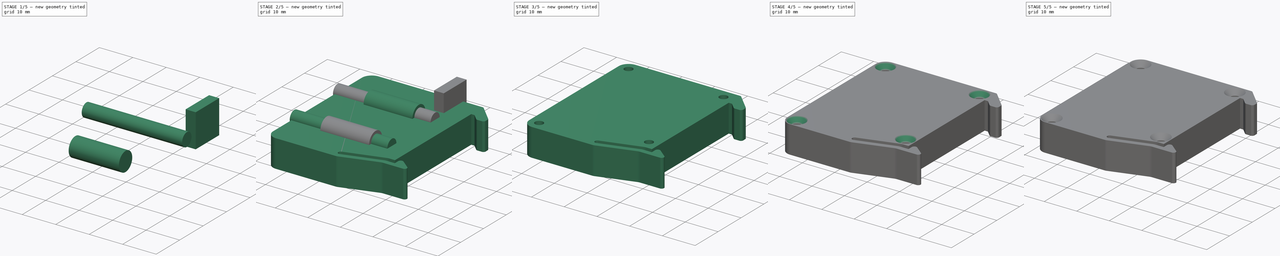
[diagram: build sequence overview — one tinted view per stage of 5, left to right]
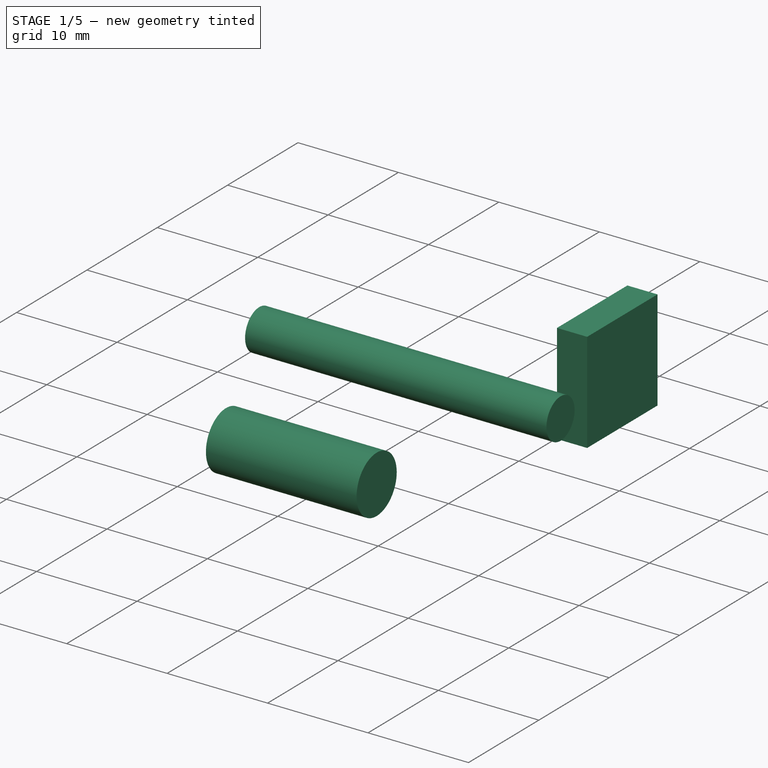
[diagram: stage 1 of 5 — iso view after this stage's code; geometry added in this stage tinted green]
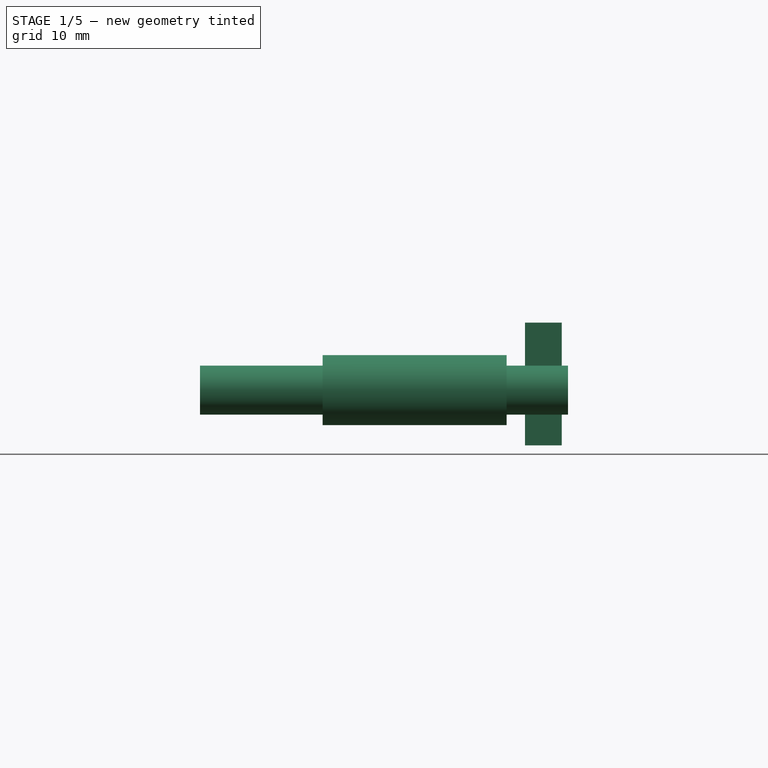
[diagram: stage 1 of 5 — front view after this stage's code; geometry added in this stage tinted green]
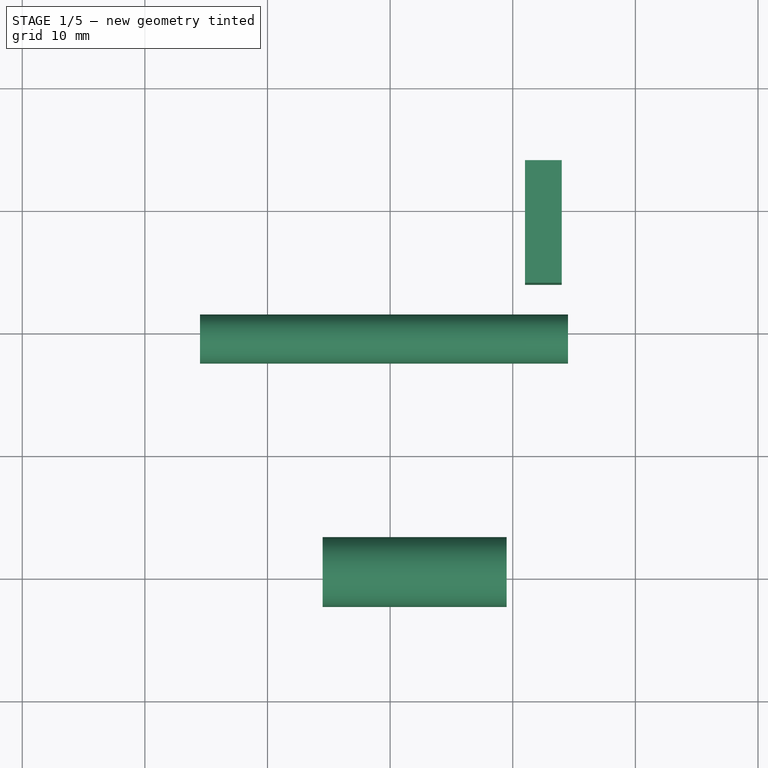
[diagram: stage 1 of 5 — top view after this stage's code; geometry added in this stage tinted green]
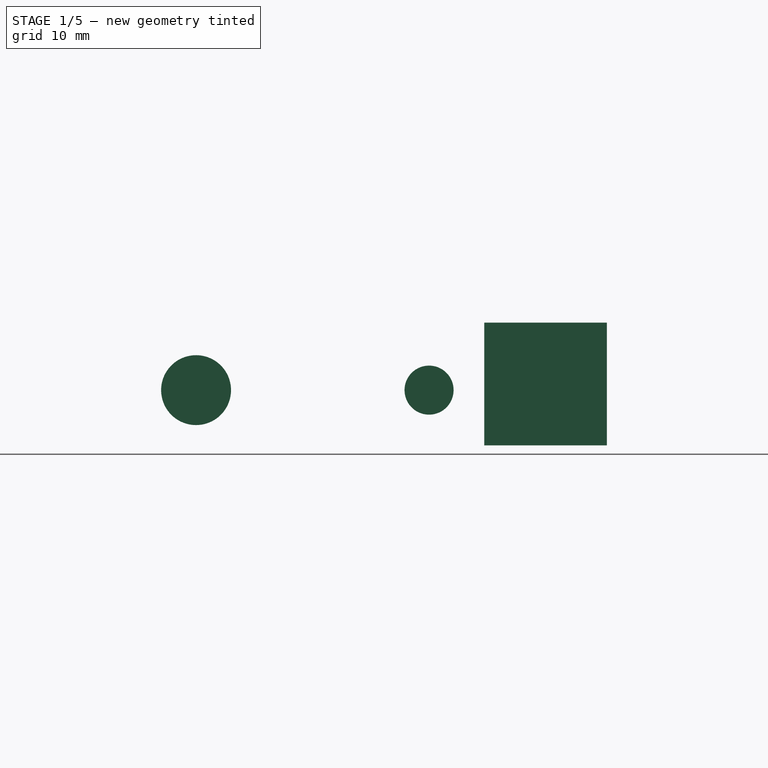
[diagram: stage 1 of 5 — right view after this stage's code; geometry added in this stage tinted green]
FCSTD DOCUMENT
Label: DIN_mains_socket_v1
License: CC-BY 3.0
LicenseURL: http://creativecommons.org/licenses/by/3.0/
objects: Part::Cylinder×5, Sketcher::SketchObject×4, Part::Mirroring×4, Part::MultiFuse×2, Part::Cut×2, PartDesign::Pocket×2, PartDesign::Pad×1, Part::Box×1, Part::Chamfer×1
note: 25 computed .brp shape members not serialized (recipe doc carries the construction recipe); baked Part::Feature solids carry a one-line shape summary decoded from their .brp

FEATURE [Part::Cylinder] Cylinder001
  Angle = 360
  Height = 30
  Placement = pos=(-35.5,9.5,8.5) rot=(0,1,0;1.5708rad)
  Radius = 2
FEATURE [Part::Cylinder] Cylinder002
  Angle = 360
  Height = 15
  Placement = pos=(-25.5,9.5,8.5) rot=(0,1,0;1.5708rad)
  Radius = 2.85
FEATURE [Part::Mirroring] Part__Mirroring002  label="Cylinder (Mirror #1)001"
  Base = (0,0,0)
  Normal = (0,1,0)
  Source = -> Cylinder002
FEATURE [Part::Box] Box
  Height = 10
  Length = 3
  Placement = pos=(-9,14,4) rot=(0,0,1;0rad)
  Width = 10
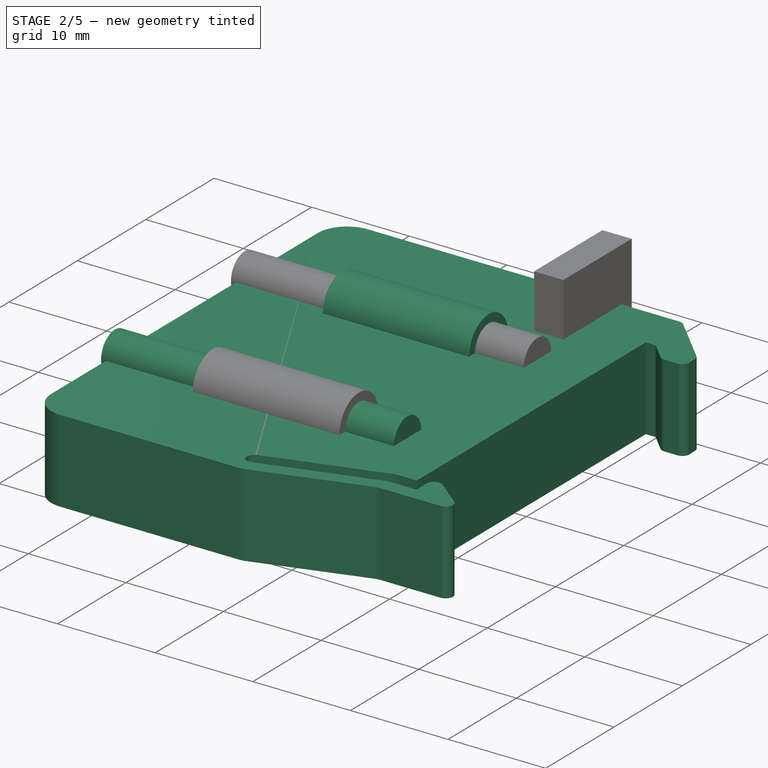
[diagram: stage 2 of 5 — iso view after this stage's code; geometry added in this stage tinted green]
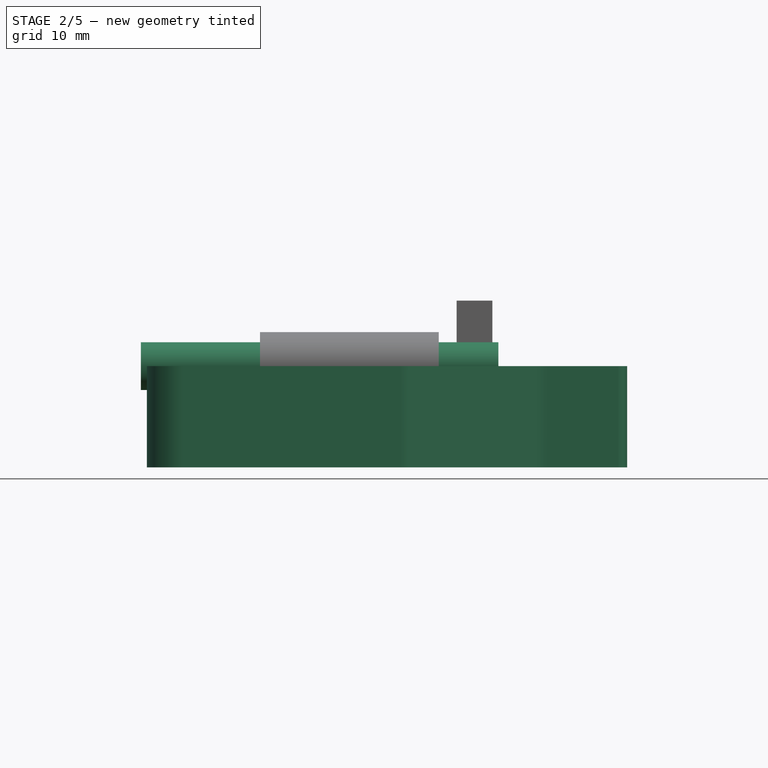
[diagram: stage 2 of 5 — front view after this stage's code; geometry added in this stage tinted green]
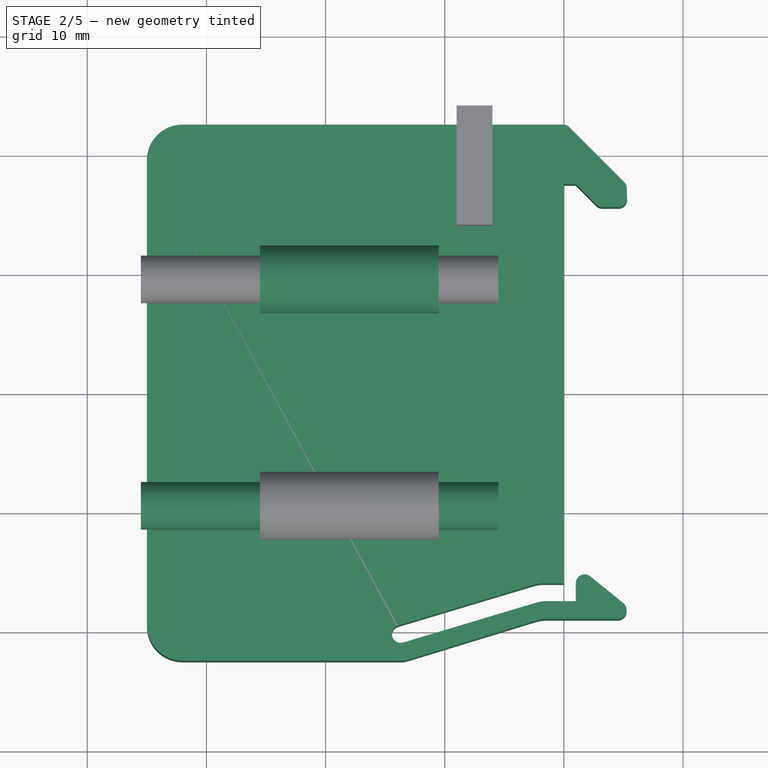
[diagram: stage 2 of 5 — top view after this stage's code; geometry added in this stage tinted green]
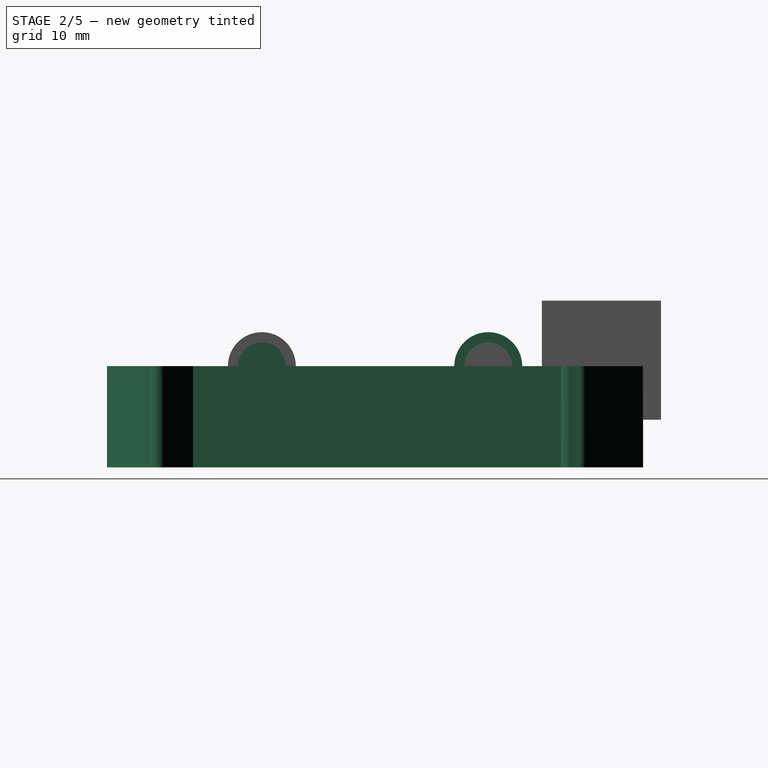
[diagram: stage 2 of 5 — right view after this stage's code; geometry added in this stage tinted green]
FEATURE [Sketcher::SketchObject] Sketch
  Placement = pos=(-3,0,0) rot=(0,0,1;0rad)
  sketch-geometry (30):
    g0: LineSegment StartX=2.94482 StartY=22.5 StartZ=0 EndX=-29 EndY=22.5 EndZ=0
    g1: LineSegment StartX=1.5304 StartY=-19 StartZ=0 EndX=7.51862 EndY=-19 EndZ=0
    g2: ArcOfCircle CenterX=7.51862 CenterY=-18.25 CenterZ=0 NormalX=0 NormalY=0 NormalZ=1 Radius=0.75 StartAngle=4.71239 EndAngle=7.17156
    g3: LineSegment StartX=7.99163 StartY=-17.668 StartZ=0 EndX=5.22301 EndY=-15.418 EndZ=0
    g4: ArcOfCircle CenterX=4.75 CenterY=-16 CenterZ=0 NormalX=0 NormalY=0 NormalZ=1 Radius=0.75 StartAngle=0.888372 EndAngle=3.14159
    g5: LineSegment StartX=4 StartY=-17.5 StartZ=0 EndX=1.53785 EndY=-17.5 EndZ=0
    g6: LineSegment StartX=1.31778 StartY=-16 StartZ=0 EndX=3 EndY=-16 EndZ=0
    g7: LineSegment StartX=3 StartY=-16 StartZ=0 EndX=3 EndY=17.5 EndZ=0
    g8: LineSegment StartX=3 StartY=17.5 StartZ=0 EndX=4 EndY=17.5 EndZ=0
    g9: LineSegment StartX=4 StartY=17.5 StartZ=0 EndX=5.68519 EndY=15.8148 EndZ=0
    g10: ArcOfCircle CenterX=6.23904 CenterY=16.3205 CenterZ=0 NormalX=0 NormalY=0 NormalZ=1 Radius=0.75 StartAngle=3.8816 EndAngle=4.71239
    g11: LineSegment StartX=6.23904 StartY=15.5705 StartZ=0 EndX=7.71675 EndY=15.5705 EndZ=0
    g12: ArcOfCircle CenterX=7.55675 CenterY=16.3033 CenterZ=0 NormalX=0 NormalY=0 NormalZ=1 Radius=0.75 StartAngle=4.92738 EndAngle=6.51668
    g13: LineSegment StartX=8.28639 StartY=16.4768 StartZ=0 EndX=8.28639 EndY=17.1456 EndZ=0
    g14: LineSegment StartX=4 StartY=-16 StartZ=0 EndX=4 EndY=-17.5 EndZ=0
    g15: LineSegment StartX=3.45324 StartY=22.2894 StartZ=0 EndX=8.06672 EndY=17.6759 EndZ=0
    g16: ArcOfCircle CenterX=7.53639 CenterY=17.1456 CenterZ=0 NormalX=0 NormalY=0 NormalZ=1 Radius=0.75 StartAngle=0 EndAngle=0.785398
    g17: ArcOfCircle CenterX=2.94482 CenterY=21.781 CenterZ=0 NormalX=0 NormalY=0 NormalZ=1 Radius=0.719009 StartAngle=0.785398 EndAngle=1.5708
    g18: LineSegment StartX=0.651894 StartY=-19.1315 StartZ=0 EndX=-10.0248 EndY=-22.4014 EndZ=0
    g19: LineSegment StartX=0.456064 StartY=-16.1264 StartZ=0 EndX=-10.8991 EndY=-19.5316 EndZ=0
    g20: LineSegment StartX=-10.4682 StartY=-20.9684 StartZ=0 EndX=0.67613 EndY=-17.6264 EndZ=0
    g21: ArcOfCircle CenterX=-10.6837 CenterY=-20.25 CenterZ=0 NormalX=0 NormalY=0 NormalZ=1 Radius=0.75 StartAngle=1.86214 EndAngle=5.00373
    g22: ArcOfCircle CenterX=-10.6837 CenterY=-20.25 CenterZ=0 NormalX=0 NormalY=0 NormalZ=1 Radius=2.25004 StartAngle=4.71239 EndAngle=5.00958
    g23: LineSegment StartX=-29 StartY=-22.5 StartZ=0 EndX=-10.6837 EndY=-22.5 EndZ=0
    g24: ArcOfCircle CenterX=1.31778 CenterY=-19 CenterZ=0 NormalX=0 NormalY=0 NormalZ=1 Radius=3 StartAngle=1.5708 EndAngle=1.86214
    g25: ArcOfCircle CenterX=1.53785 CenterY=-20.5 CenterZ=0 NormalX=0 NormalY=0 NormalZ=1 Radius=3 StartAngle=1.5708 EndAngle=1.86214
    g26: ArcOfCircle CenterX=1.5304 CenterY=-22 CenterZ=0 NormalX=0 NormalY=0 NormalZ=1 Radius=3 StartAngle=1.5708 EndAngle=1.86799
    g27: LineSegment StartX=-32 StartY=-19.5 StartZ=0 EndX=-32 EndY=19.5 EndZ=0
    g28: ArcOfCircle CenterX=-29 CenterY=19.5 CenterZ=0 NormalX=0 NormalY=0 NormalZ=1 Radius=3 StartAngle=1.5708 EndAngle=3.1416
    g29: ArcOfCircle CenterX=-29 CenterY=-19.5 CenterZ=0 NormalX=0 NormalY=0 NormalZ=1 Radius=3 StartAngle=3.1416 EndAngle=4.71238
  constraints (80):
    c: Coincident(g6,g7)
    c: Vertical(g7)
    c: Parallel(g5,g6)
    c: Vertical(g14)
    c: Coincident(g4,g14)
    c: Coincident(g4,g3)
    c: Tangent(g4,g14)
    c: Tangent(g4,g3)
    c: Coincident(g14,g5)
    c: Coincident(g8,g7)
    c: Coincident(g3,g2)
    c: DistanceY(g6,g5) = -1.5
    c: Distance(g5,g1) = 1.5
    c: Coincident(g1,g2)
    c: Distance(g8) = 1
    c: Horizontal(g8)
    c: Coincident(g9,g8)
    c: Tangent(g10,g11)
    c: Horizontal(g0)
    c: Radius(g2) = 0.75
    c: DistanceX(g6,g5) = 1
    c: Distance(g14) = 1.5
    c: Radius(g4) = 0.75
    c: Vertical(g13)
    c: Coincident(g12,g13)
    c: Coincident(g11,g12)
    c: Horizontal(g11)
    c: Tangent(g2,g1)
    c: Coincident(g10,g9)
    c: Coincident(g10,g11)
    c: Tangent(g3,g2)
    c: Angle(g0,g15) = 2.35619
    c: Distance(g8,g15) = 3
    c: Parallel(g9,g15)
    c: Tangent(g13,g16)
    c: Tangent(g15,g16)
    c: Tangent(g0,g17)
    c: Tangent(g15,g17)
    c: Radius(g12) = 0.75
    c: Equal(g16,g12)
    c: Equal(g12,g10)
    c: DistanceY(g5,g8) = 35
    c: Distance(g20,g19) = 1.5
    c: Coincident(g21,g20)
    c: Tangent(g21,g20)
    c: Coincident(g21,g19)
    c: Tangent(g21,g19)
    c: Tangent(g23,g22)
    c: Tangent(g18,g22)
    c: Coincident(g22,g21)
    c: Parallel(g19,g20)
    c: Parallel(g5,g1)
    c: Horizontal(g1)
    c: DistanceY(g5) = -17.5
    c: Distance(g18,g20) = 1.5
    c: Tangent(g6,g24)
    c: Tangent(g19,g24)
    c: Tangent(g5,g25)
    c: Tangent(g20,g25)
    c: Tangent(g1,g26)
    c: Tangent(g18,g26)
    c: Radius(g24) = 3
    c: Radius(g25) = 3
    c: Radius(g26) = 3
    c: Horizontal(g23)
    c: DistanceY(g23,g0) = 45
    c: Vertical(g27)
    c: DistanceX(g27) = -32
    c: DistanceX(g6) = 3
    c: DistanceY(g0) = 22.5
    c: DistanceX(g28) = -29
    c: DistanceY(g28) = 19.5
    c: Coincident(g28,g27)
    c: Coincident(g28,g0)
    c: DistanceX(g29) = -29
    c: DistanceY(g29) = -19.5
    c: Coincident(g29,g23)
    c: Coincident(g29,g27)
    c: Equal(g29,g28)
    c: Radius(g28) = 3
FEATURE [Sketcher::SketchObject] Sketch001
  Placement = pos=(0,17.5,0) rot=(0,0,1;0rad)
  sketch-geometry (20):
    g0: LineSegment StartX=0 StartY=0 StartZ=0 EndX=0.981065 EndY=0 EndZ=0
    g1: LineSegment StartX=0.981065 StartY=0 StartZ=0 EndX=0.981065 EndY=-3.53545 EndZ=0
    g2: ArcOfCircle CenterX=1.48107 CenterY=-3.53545 CenterZ=0 NormalX=0 NormalY=0 NormalZ=1 Radius=0.5 StartAngle=3.14159 EndAngle=4.71239
    g3: LineSegment StartX=1.48107 StartY=-4.03545 StartZ=0 EndX=6.48107 EndY=-4.03545 EndZ=0
    g4: ArcOfCircle CenterX=6.48107 CenterY=-5.03545 CenterZ=0 NormalX=0 NormalY=0 NormalZ=1 Radius=1 StartAngle=0 EndAngle=1.5708
    g5: LineSegment StartX=7.48107 StartY=-5.03545 StartZ=0 EndX=7.48107 EndY=-30.0354 EndZ=0
    g6: ArcOfCircle CenterX=6.48107 CenterY=-30.0354 CenterZ=0 NormalX=0 NormalY=0 NormalZ=1 Radius=1 StartAngle=4.71239 EndAngle=6.28319
    g7: LineSegment StartX=6.48107 StartY=-31.0354 StartZ=0 EndX=1.48107 EndY=-31.0354 EndZ=0
    g8: ArcOfCircle CenterX=1.48107 CenterY=-31.5354 CenterZ=0 NormalX=0 NormalY=0 NormalZ=1 Radius=0.5 StartAngle=1.5708 EndAngle=3.14159
    g9: LineSegment StartX=0.981065 StartY=-31.5354 StartZ=0 EndX=0.981065 EndY=-35 EndZ=0
    g10: LineSegment StartX=0.981065 StartY=-35 StartZ=0 EndX=-0.018935 EndY=-35 EndZ=0
    g11: LineSegment StartX=-0.018935 StartY=-35 StartZ=0 EndX=-0.018935 EndY=-31.0354 EndZ=0
    g12: ArcOfCircle CenterX=0.981065 CenterY=-31.0354 CenterZ=0 NormalX=0 NormalY=0 NormalZ=1 Radius=1 StartAngle=1.5708 EndAngle=3.14159
    g13: LineSegment StartX=0.981065 StartY=-30.0354 StartZ=0 EndX=5.98107 EndY=-30.0354 EndZ=0
    g14: ArcOfCircle CenterX=5.98107 CenterY=-29.5354 CenterZ=0 NormalX=0 NormalY=0 NormalZ=1 Radius=0.5 StartAngle=4.71239 EndAngle=6.28319
    g15: LineSegment StartX=6.48107 StartY=-29.5354 StartZ=0 EndX=6.48107 EndY=-5.53545 EndZ=0
    g16: ArcOfCircle CenterX=5.98107 CenterY=-5.53545 CenterZ=0 NormalX=0 NormalY=0 NormalZ=1 Radius=0.5 StartAngle=0 EndAngle=1.5708
    g17: LineSegment StartX=5.98107 StartY=-5.03545 StartZ=0 EndX=0.981065 EndY=-5.03545 EndZ=0
    g18: ArcOfCircle CenterX=0.981065 CenterY=-4.03545 CenterZ=0 NormalX=0 NormalY=0 NormalZ=1 Radius=1 StartAngle=3.14159 EndAngle=4.71239
    g19: LineSegment StartX=-0.018935 StartY=-4.03545 StartZ=0 EndX=0 EndY=0 EndZ=0
  constraints (9):
    c: DistanceY(g-1,g10) = -35
    c: DistanceX(g0) = 0
    c: DistanceY(g0) = 0
    c: Horizontal(g0)
    c: Coincident(g19,g-1)
    c: Coincident(g1,g0)
    c: Horizontal(g10)
    c: Coincident(g9,g10)
    c: Coincident(g11,g10)
FEATURE [PartDesign::Pad] Pad  label="DIN bracket solid"
  Length = 8.5
  Length2 = 100
  Placement = pos=(-3,0,0) rot=(0,0,1;0rad)
  Sketch = -> Sketch
  Type = 0
FEATURE [Part::Mirroring] Part__Mirroring001  label="Cylinder001 (Mirror #2)"
  Base = (0,0,0)
  Normal = (0,1,0)
  Source = -> Cylinder001
FEATURE [Part::MultiFuse] Fusion  label="cuts"
  Shapes = -> [Part__Mirroring002,Part__Mirroring001,Cylinder002,Cylinder001,Box]
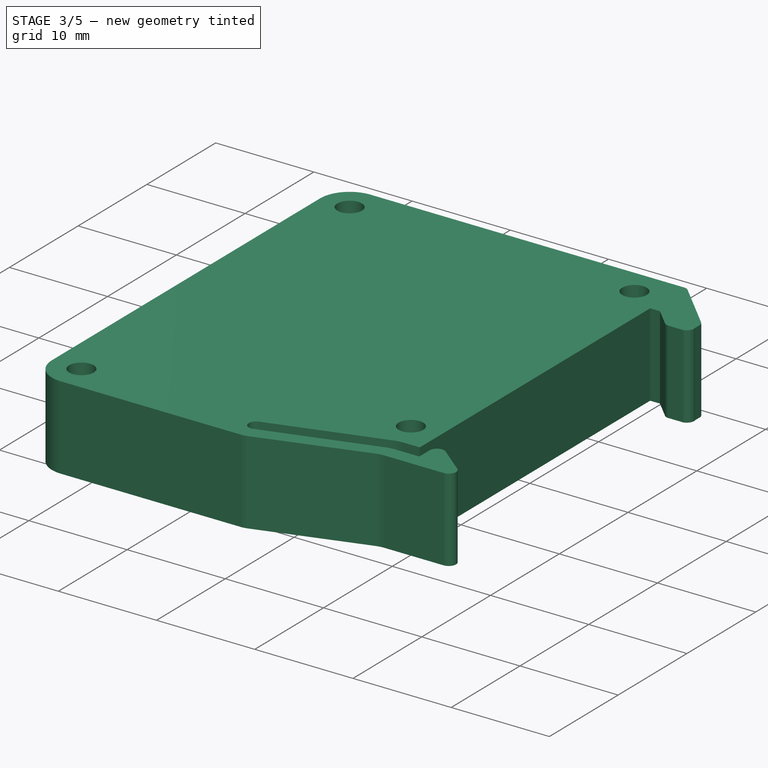
[diagram: stage 3 of 5 — iso view after this stage's code; geometry added in this stage tinted green]
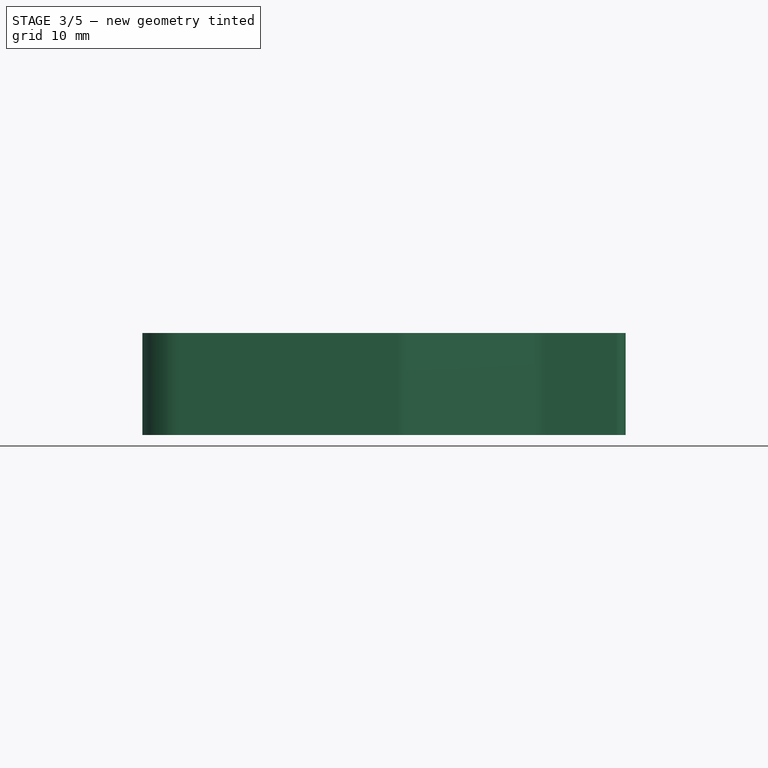
[diagram: stage 3 of 5 — front view after this stage's code; geometry added in this stage tinted green]
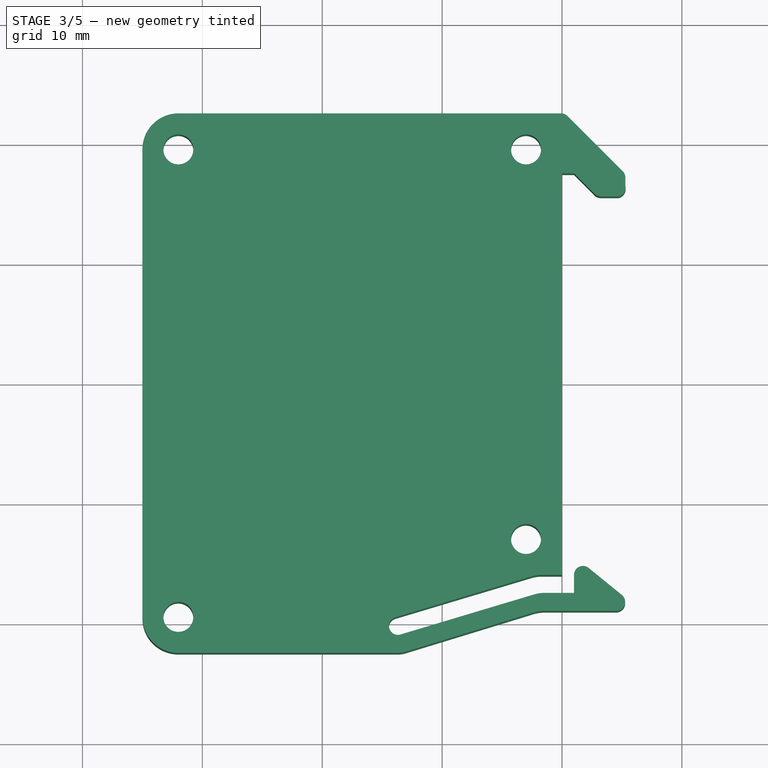
[diagram: stage 3 of 5 — top view after this stage's code; geometry added in this stage tinted green]
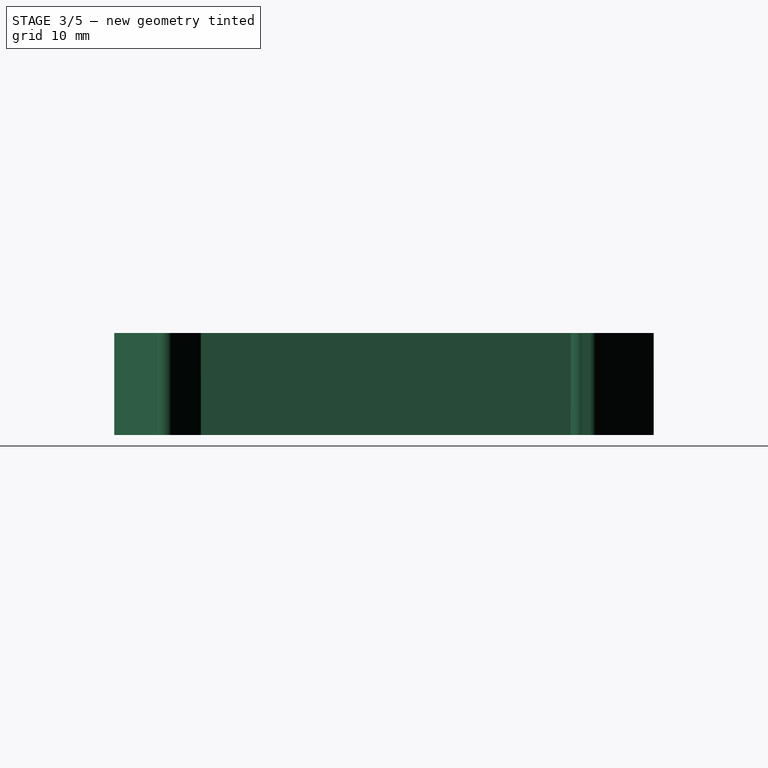
[diagram: stage 3 of 5 — right view after this stage's code; geometry added in this stage tinted green]
FEATURE [Sketcher::SketchObject] Sketch002001  label="Sketch002"
  Placement = pos=(-3,0,8.5) rot=(0,0,1;0rad)
  Support = -> Pad [Face32]
  sketch-geometry (25):
    g0: LineSegment StartX=1.5 StartY=16.9019 StartZ=0 EndX=1.5 EndY=-10.4049 EndZ=0
    g1: LineSegment StartX=-15.5 StartY=-19.5 StartZ=0 EndX=-9 EndY=-17.5346 EndZ=0
    g2: ArcOfCircle CenterX=0 CenterY=19.5 CenterZ=0 NormalX=0 NormalY=0 NormalZ=1 Radius=3 StartAngle=2.61799 EndAngle=5.23599
    g3: LineSegment StartX=-2.59808 StartY=21 StartZ=0 EndX=-6 EndY=21 EndZ=0
    g4: LineSegment StartX=-30.5 StartY=16.9019 StartZ=0 EndX=-30.5 EndY=-16.9019 EndZ=0
    g5: LineSegment StartX=-26 StartY=-19.5 StartZ=0 EndX=-24 EndY=-19.5 EndZ=0
    g6: ArcOfCircle CenterX=-29 CenterY=19.5 CenterZ=0 NormalX=0 NormalY=0 NormalZ=1 Radius=3 StartAngle=4.18879 EndAngle=6.80678
    g7: ArcOfCircle CenterX=-29 CenterY=-19.5 CenterZ=0 NormalX=0 NormalY=0 NormalZ=1 Radius=3 StartAngle=0 EndAngle=2.0944
    g8: ArcOfCircle CenterX=-0.005189 CenterY=-13 CenterZ=0 NormalX=0 NormalY=0 NormalZ=1 Radius=3 StartAngle=1.0452 EndAngle=4.05276
    g9: LineSegment StartX=-24 StartY=3 StartZ=0 EndX=-21 EndY=3 EndZ=0
    g10: LineSegment StartX=-21 StartY=3 StartZ=0 EndX=-21 EndY=21 EndZ=0
    g11: LineSegment StartX=-24 StartY=21 StartZ=0 EndX=-24 EndY=3 EndZ=0
    g12: LineSegment StartX=-24 StartY=-3 StartZ=0 EndX=-21 EndY=-3 EndZ=0
    g13: LineSegment StartX=-21 StartY=-3 StartZ=0 EndX=-21 EndY=-19.5 EndZ=0
    g14: LineSegment StartX=-24 StartY=-19.5 StartZ=0 EndX=-24 EndY=-3 EndZ=0
    g15: LineSegment StartX=-6 StartY=3 StartZ=0 EndX=-9 EndY=3 EndZ=0
    g16: LineSegment StartX=-9 StartY=3 StartZ=0 EndX=-9 EndY=21 EndZ=0
    g17: LineSegment StartX=-6 StartY=21 StartZ=0 EndX=-6 EndY=3 EndZ=0
    g18: LineSegment StartX=-9 StartY=-3 StartZ=0 EndX=-6 EndY=-3 EndZ=0
    g19: LineSegment StartX=-6 StartY=-3 StartZ=0 EndX=-6 EndY=-16.6274 EndZ=0
    g20: LineSegment StartX=-9 StartY=-17.5346 StartZ=0 EndX=-9 EndY=-3 EndZ=0
    g21: LineSegment StartX=-24 StartY=21 StartZ=0 EndX=-26.4019 EndY=21 EndZ=0
    g22: LineSegment StartX=-9 StartY=21 StartZ=0 EndX=-21 EndY=21 EndZ=0
    g23: LineSegment StartX=-21 StartY=-19.5 StartZ=0 EndX=-15.5 EndY=-19.5 EndZ=0
    g24: LineSegment StartX=-6 StartY=-16.6274 StartZ=0 EndX=-1.84366 EndY=-15.3707 EndZ=0
  constraints (75):
    c: DistanceX(g1) = -15.5
    c: DistanceX(g0) = 1.5
    c: Coincident(g2,g0)
    c: Horizontal(g3)
    c: Horizontal(g5)
    c: Coincident(g3,g2)
    c: Vertical(g4)
    c: Coincident(g23,g1)
    c: DistanceX(g7) = -29
    c: DistanceY(g7) = -19.5
    c: DistanceX(g6) = -29
    c: DistanceY(g6) = 19.5
    c: DistanceX(g2) = 0
    c: DistanceY(g2) = 19.5
    c: Vertical(g0)
    c: Coincident(g5,g7)
    c: Coincident(g4,g7)
    c: Coincident(g21,g6)
    c: Coincident(g4,g6)
    c: Radius(g8) = 3
    c: DistanceY(g1) = -19.5
    c: Coincident(g24,g8)
    c: Coincident(g0,g8)
    c: Coincident(g9,g10)
    c: Coincident(g11,g9)
    c: Horizontal(g9)
    c: Vertical(g10)
    c: Vertical(g11)
    c: Coincident(g12,g13)
    c: Coincident(g14,g12)
    c: Horizontal(g12)
    c: Vertical(g13)
    c: Vertical(g14)
    c: Coincident(g15,g16)
    c: Coincident(g17,g15)
    c: Horizontal(g15)
    c: Vertical(g16)
    c: Vertical(g17)
    c: Coincident(g18,g19)
    c: Coincident(g20,g18)
    c: Horizontal(g18)
    c: Vertical(g19)
    c: Vertical(g20)
    c: Distance(g9) = 3
    c: Equal(g9,g12)
    c: Equal(g12,g15)
    c: Equal(g15,g18)
    c: Coincident(g22,g10)
    c: Coincident(g21,g11)
    c: Tangent(g3,g21)
    c: Coincident(g3,g17)
    c: Coincident(g22,g16)
    c: Tangent(g3,g22)
    c: Coincident(g5,g14)
    c: Coincident(g23,g13)
    c: Tangent(g5,g23)
    c: Coincident(g1,g20)
    c: Coincident(g24,g19)
    c: Tangent(g1,g24)
    c: DistanceY(g9) = 3
    c: DistanceX(g15) = -9
    c: DistanceY(g15) = 3
    c: DistanceX(g18) = -9
    c: DistanceY(g18) = -3
    c: DistanceX(g12) = -24
    c: DistanceY(g12) = -3
    c: DistanceX(g9) = -24
    c: DistanceX(g4) = -30.5
    c: Angle(g1,g23) = 2.84796
    c: Equal(g8,g7)
    c: Equal(g7,g6)
    c: Equal(g6,g2)
    c: DistanceX(g8) = -0.005189
    c: DistanceY(g8) = -13
    c: DistanceY(g10) = 21
FEATURE [PartDesign::Pocket] Pocket
  Length = 7.5
  Placement = pos=(-3,0,0) rot=(0,0,1;0rad)
  Sketch = -> Sketch002001
  Type = 0
FEATURE [Sketcher::SketchObject] Sketch003
  Placement = pos=(-3,0,0) rot=(1,0,0;3.14159rad)
  Support = -> Pocket [Face4]
  sketch-geometry (4):
    g0: Circle CenterX=-29 CenterY=19.5 CenterZ=0 NormalX=0 NormalY=0 NormalZ=1 Radius=1.25
    g1: Circle CenterX=-29 CenterY=-19.5 CenterZ=0 NormalX=0 NormalY=0 NormalZ=1 Radius=1.25
    g2: Circle CenterX=0 CenterY=13 CenterZ=0 NormalX=0 NormalY=0 NormalZ=1 Radius=1.25
    g3: Circle CenterX=0 CenterY=-19.5 CenterZ=0 NormalX=0 NormalY=0 NormalZ=1 Radius=1.25
  constraints (12):
    c: Radius(g0) = 1.25
    c: DistanceX(g0) = -29
    c: DistanceY(g0) = 19.5
    c: Equal(g1,g0)
    c: DistanceX(g1) = -29
    c: DistanceY(g1) = -19.5
    c: Equal(g2,g0)
    c: DistanceX(g2) = 0
    c: DistanceY(g2) = 13
    c: Equal(g3,g0)
    c: DistanceX(g3) = 0
    c: DistanceY(g3) = -19.5
FEATURE [PartDesign::Pocket] Pocket002  label="half socket hollow"
  Length = 5
  Placement = pos=(-3,0,0) rot=(0,0,1;0rad)
  Sketch = -> Sketch003
  Type = 1
FEATURE [Part::Cut] Cut  label="half socket"
  Base = -> Pocket002
  Tool = -> Fusion
FEATURE [Part::Mirroring] Part__Mirroring  label="half socket (Mirror #4)"
  Base = (0,0,8.5)
  Normal = (0,0,1)
  Source = -> Cut
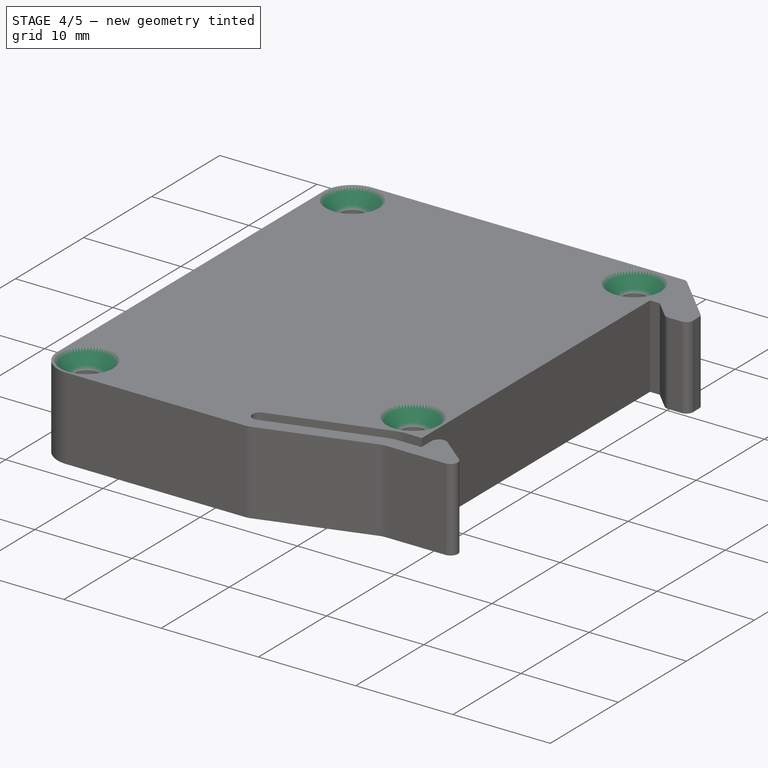
[diagram: stage 4 of 5 — iso view after this stage's code; geometry added in this stage tinted green]
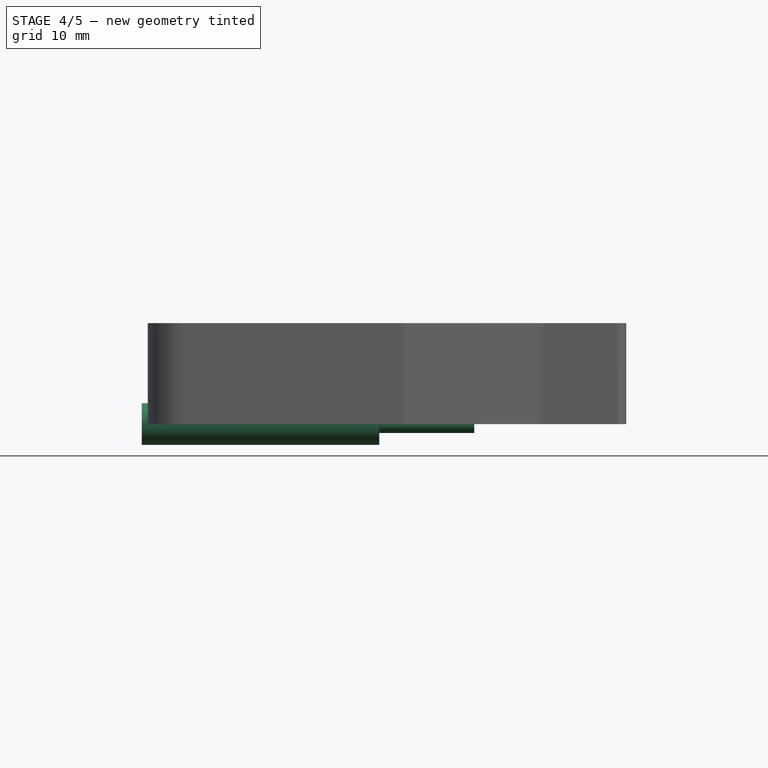
[diagram: stage 4 of 5 — front view after this stage's code; geometry added in this stage tinted green]
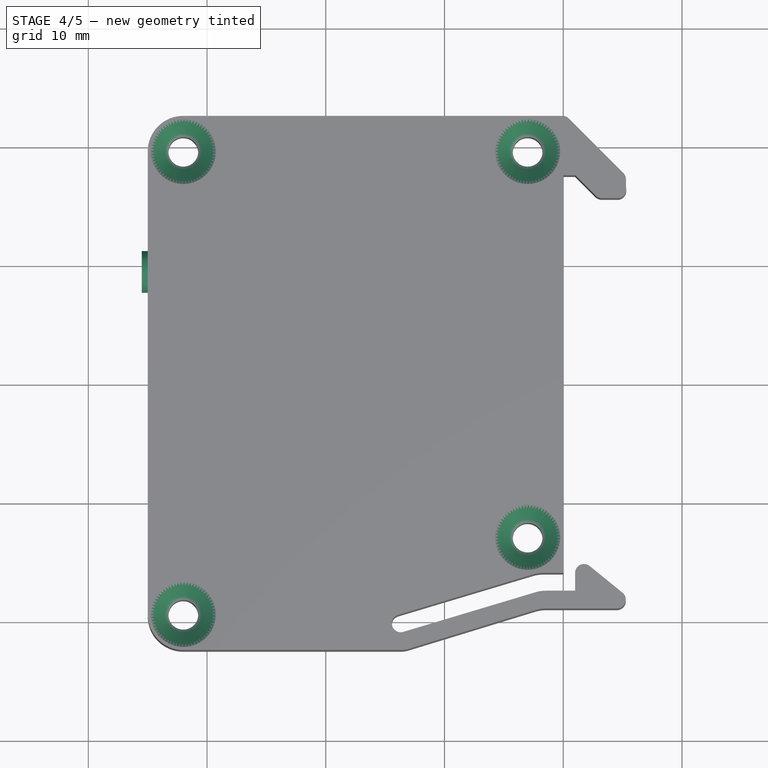
[diagram: stage 4 of 5 — top view after this stage's code; geometry added in this stage tinted green]
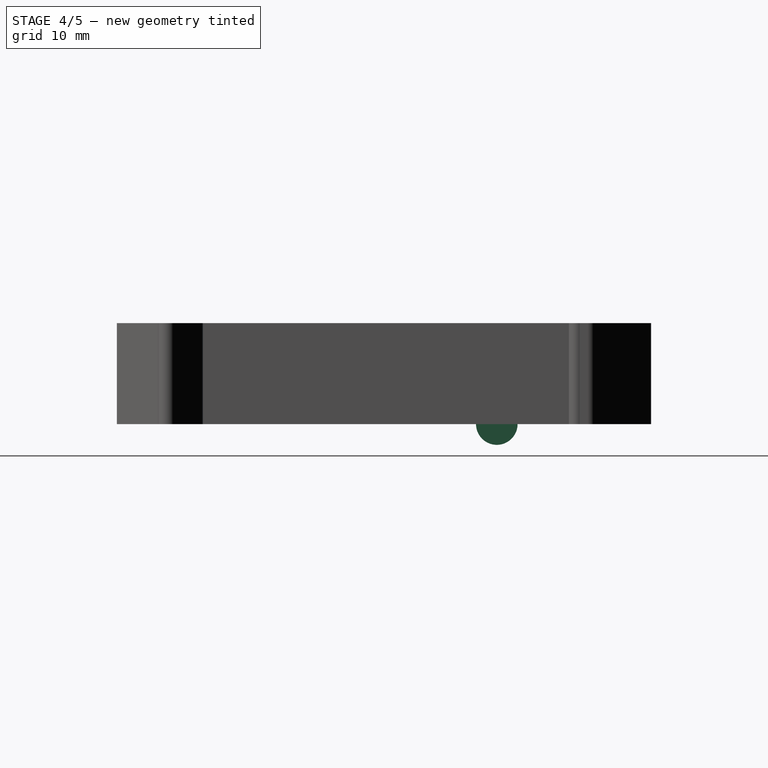
[diagram: stage 4 of 5 — right view after this stage's code; geometry added in this stage tinted green]
FEATURE [Part::Cylinder] Cylinder001001
  Angle = 360
  Height = 20
  Placement = pos=(-35.5,9.5,8.5) rot=(0,1,0;1.5708rad)
  Radius = 1.75
FEATURE [Part::Cylinder] Cylinder001001001
  Angle = 360
  Height = 28
  Placement = pos=(-35.5,9.5,8.5) rot=(0,1,0;1.5708rad)
  Radius = 0.75
FEATURE [Part::Chamfer] Chamfer
  Base = -> Part__Mirroring
  Edges = 4 edges r=1.49: [Edge15,Edge16,Edge17,Edge18]
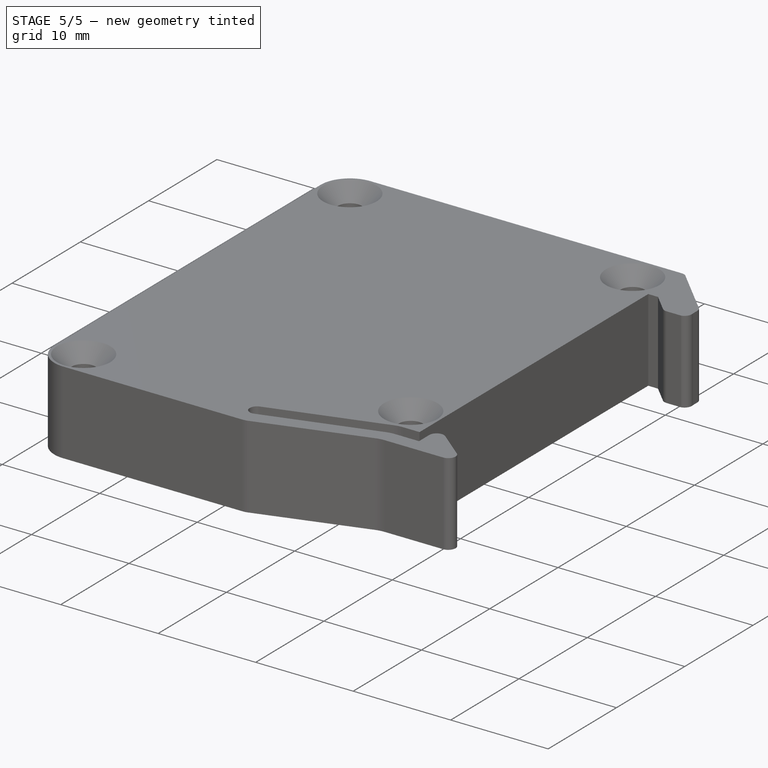
[diagram: stage 5 of 5 — iso view after this stage's code; geometry added in this stage tinted green]
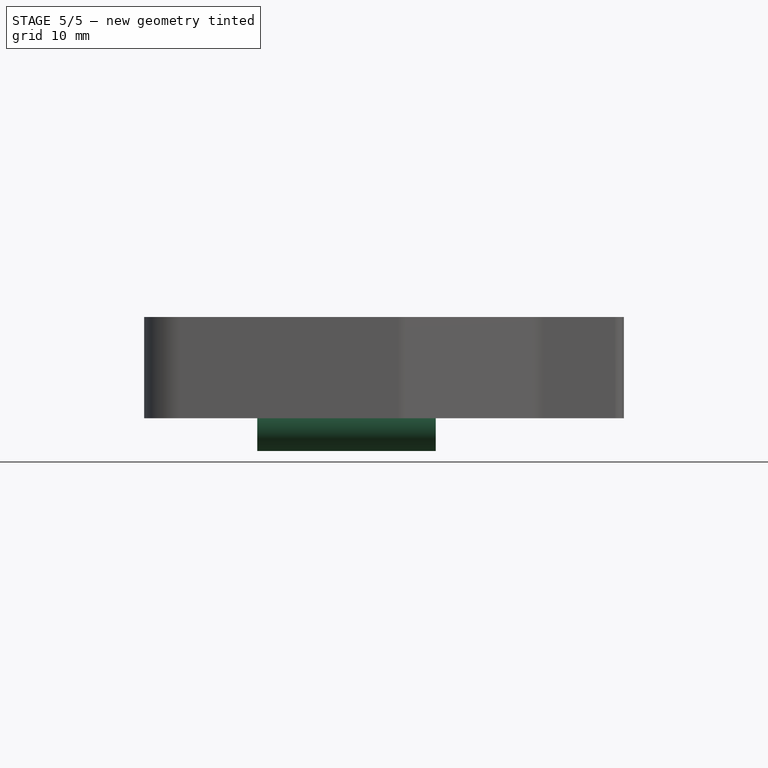
[diagram: stage 5 of 5 — front view after this stage's code; geometry added in this stage tinted green]
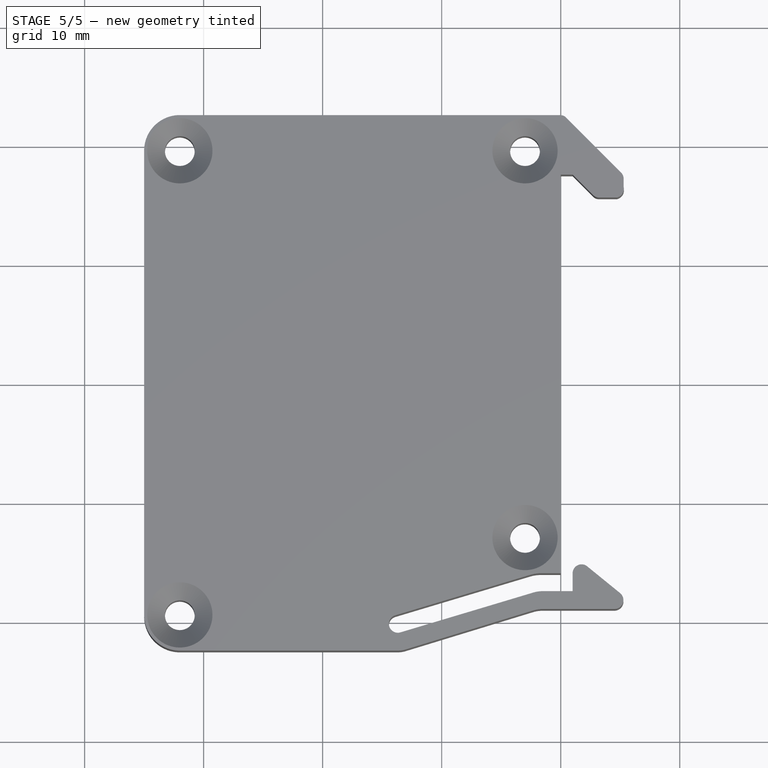
[diagram: stage 5 of 5 — top view after this stage's code; geometry added in this stage tinted green]
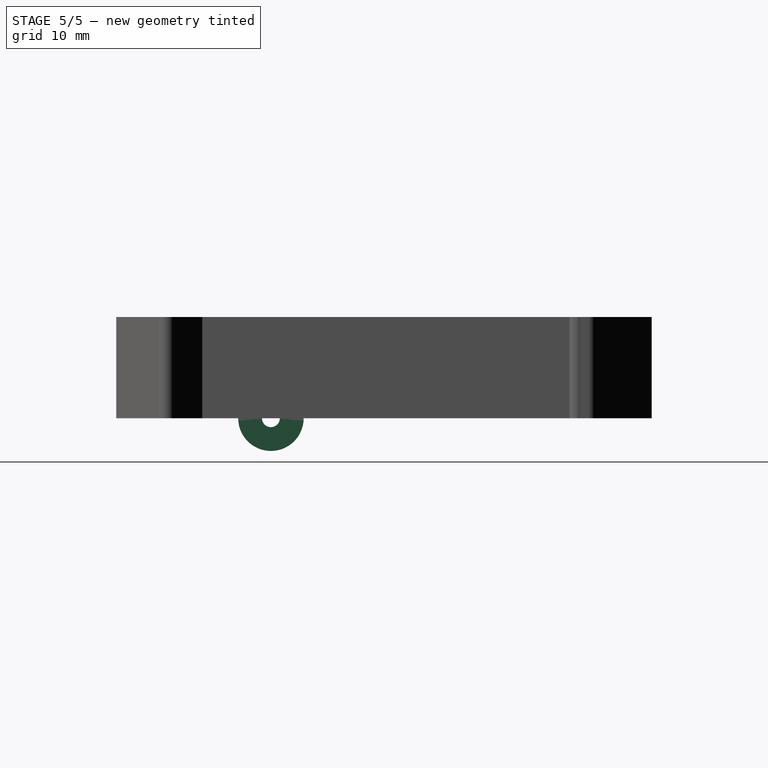
[diagram: stage 5 of 5 — right view after this stage's code; geometry added in this stage tinted green]
FEATURE [Part::Cylinder] Cylinder002001
  Angle = 360
  Height = 15
  Placement = pos=(-25.5,9.5,8.5) rot=(0,1,0;1.5708rad)
  Radius = 2.75
FEATURE [Part::MultiFuse] Fusion001
  Shapes = -> [Cylinder001001001,Cylinder001001]
FEATURE [Part::Cut] Cut001  label="conductor"
  Base = -> Cylinder002001
  Tool = -> Fusion001
FEATURE [Part::Mirroring] Part__Mirroring003  label="conductor (Mirror #4)"
  Base = (0,0,0)
  Normal = (0,1,0)
  Source = -> Cut001
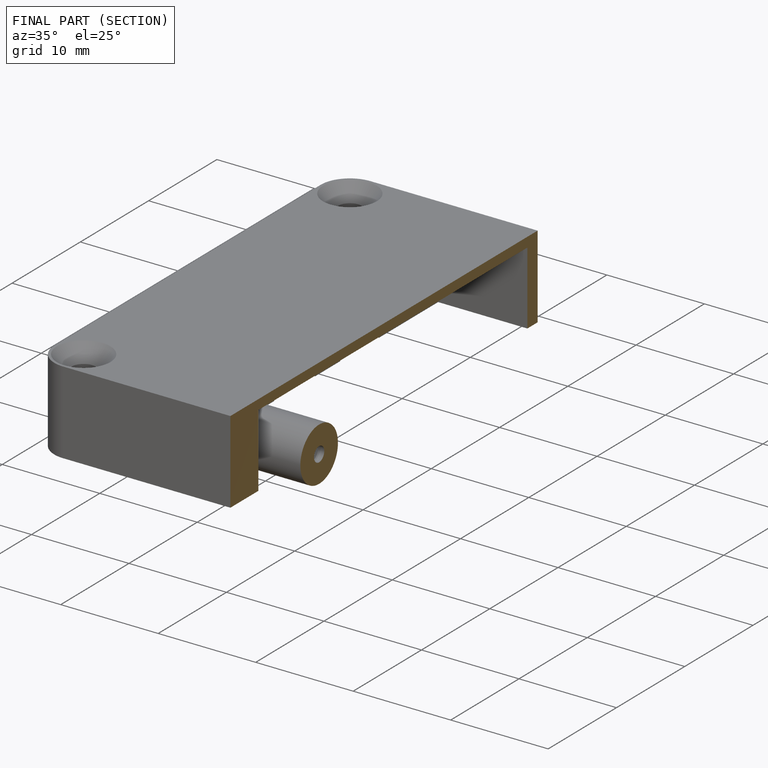
[diagram: finished part — half-section view (interior)]
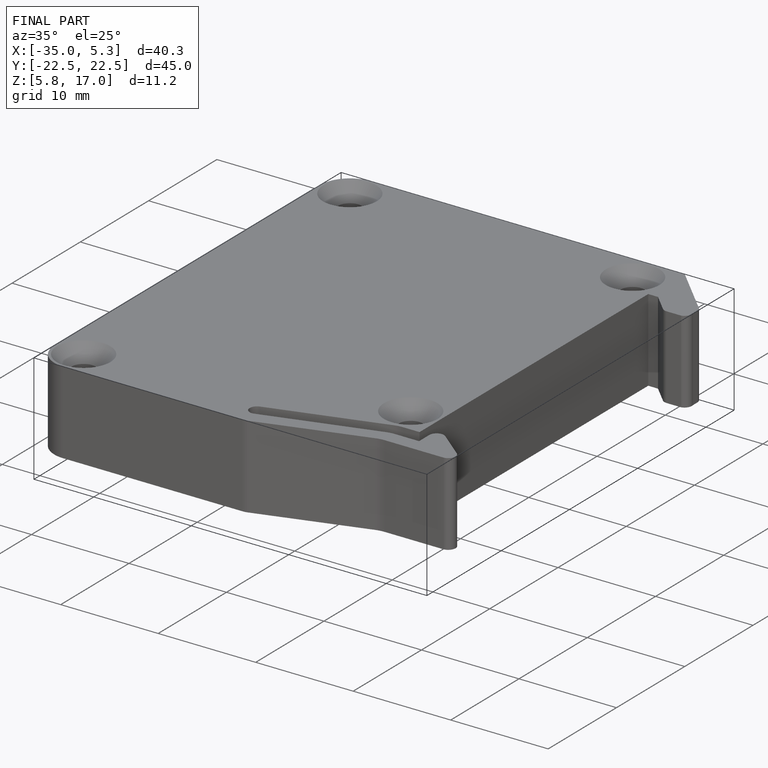
[diagram: finished part — iso view with bounding-box wireframe]
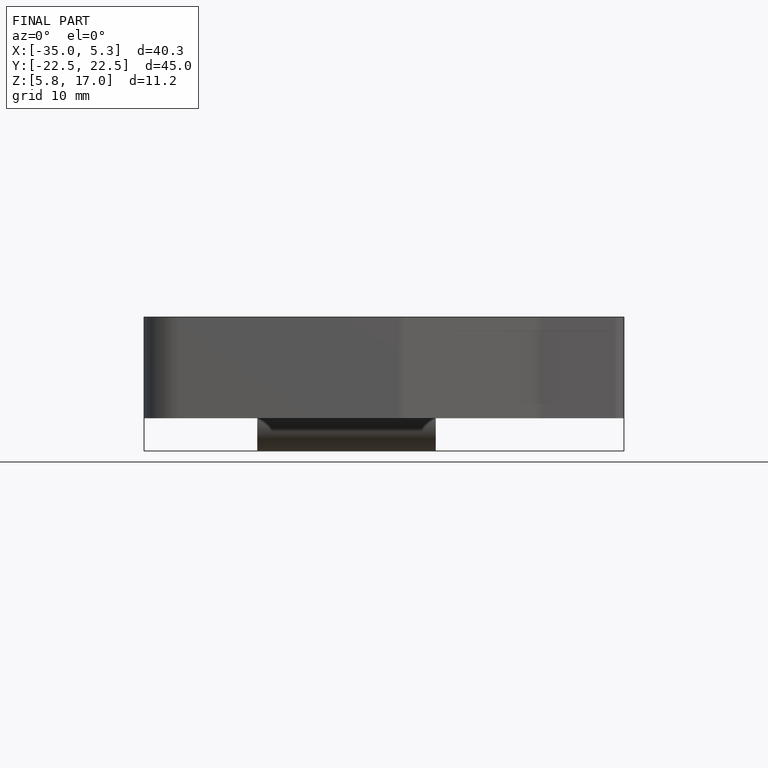
[diagram: finished part — front view with bounding-box wireframe]
